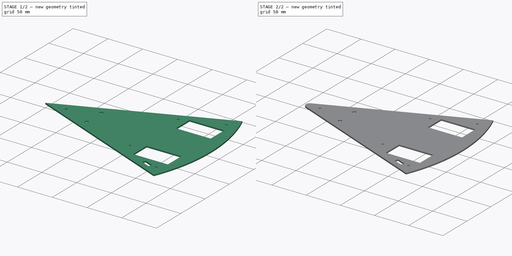
[diagram: build sequence overview — one tinted view per stage of 2, left to right]
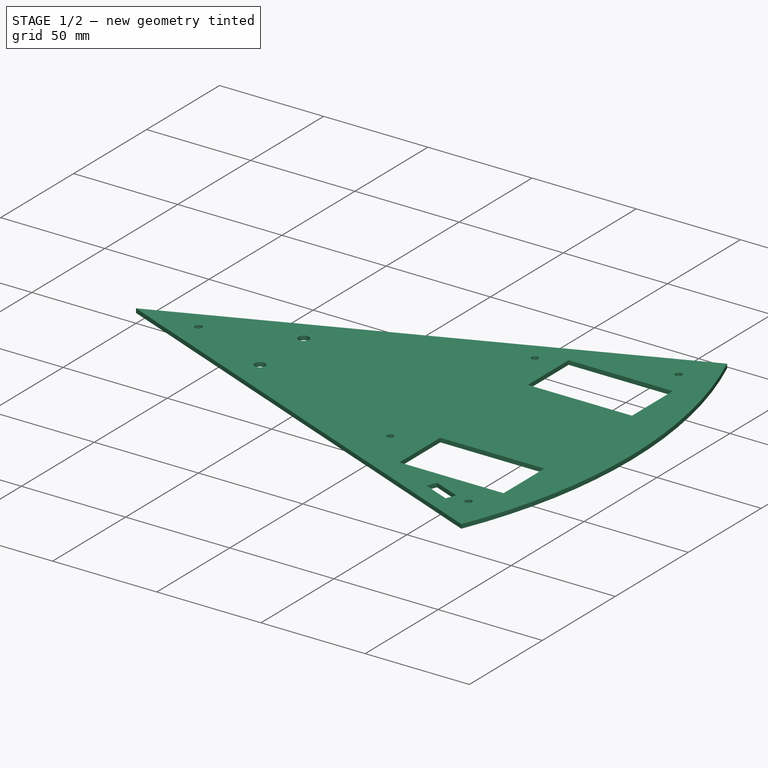
[diagram: stage 1 of 2 — iso view after this stage's code; geometry added in this stage tinted green]
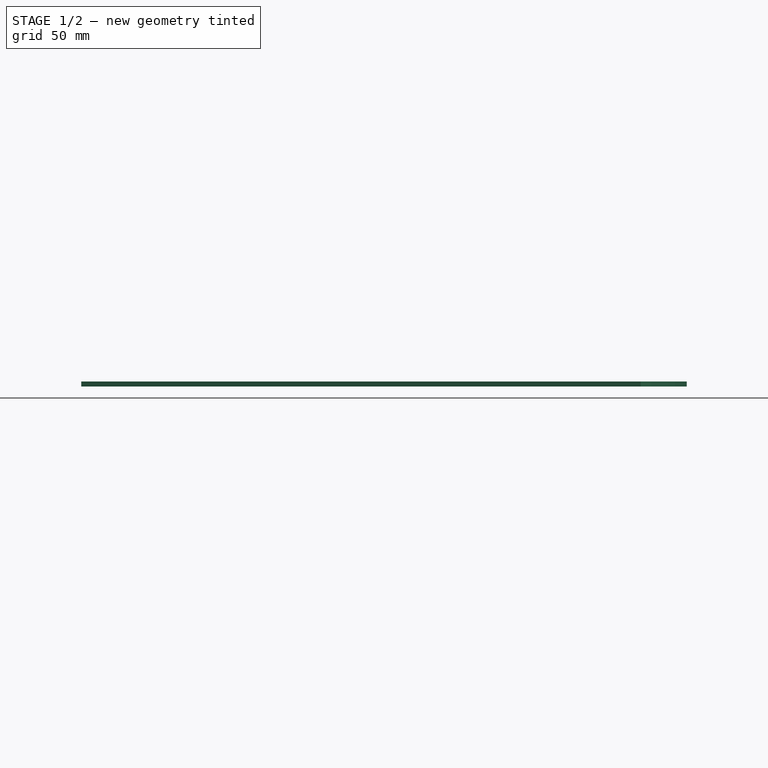
[diagram: stage 1 of 2 — front view after this stage's code; geometry added in this stage tinted green]
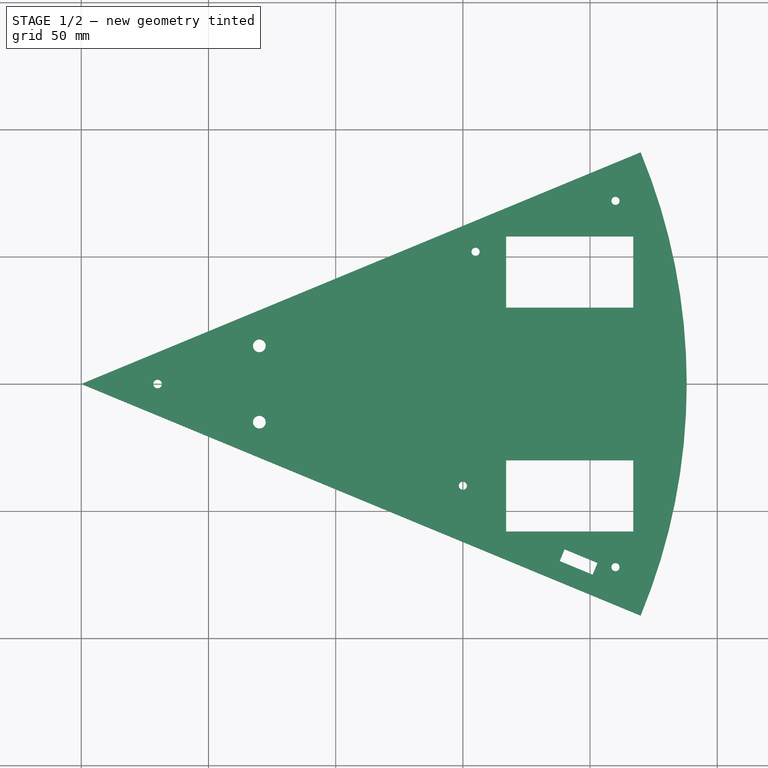
[diagram: stage 1 of 2 — top view after this stage's code; geometry added in this stage tinted green]
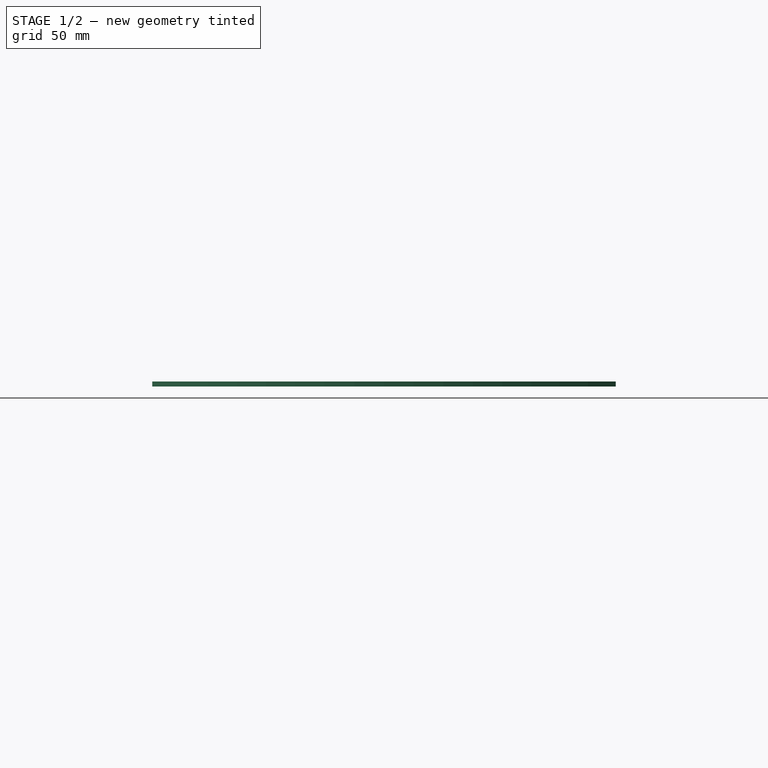
[diagram: stage 1 of 2 — right view after this stage's code; geometry added in this stage tinted green]
FCSTD DOCUMENT  (FreeCAD 0.21R33668 +26 (Git))
Label: tapa
License: All rights reserved
LicenseURL: https://en.wikipedia.org/wiki/All_rights_reserved
objects: Sketcher::SketchObject×1, PartDesign::Pad×1, PartDesign::Fillet×1, PartDesign::Body×1
note: 6 computed .brp shape members not serialized (recipe doc carries the construction recipe); baked Part::Feature solids carry a one-line shape summary decoded from their .brp

FEATURE [Sketcher::SketchObject] Sketch
  FullyConstrained = true
  MapMode = 5
  Support = -> [XY_Plane]
  sketch-geometry (22):
    g0: LineSegment StartX=0 StartY=0 StartZ=0 EndX=219.883 EndY=91.0787 EndZ=0
    g1: LineSegment StartX=0 StartY=0 StartZ=0 EndX=219.883 EndY=-91.0787 EndZ=0
    g2: ArcOfCircle CenterX=0 CenterY=0 CenterZ=0 NormalX=0 NormalY=0 NormalZ=1 AngleXU=0 Radius=238 StartAngle=5.89049 EndAngle=6.67588
    g3: LineSegment StartX=167 StartY=58 StartZ=0 EndX=217 EndY=58 EndZ=0
    g4: LineSegment StartX=217 StartY=58 StartZ=0 EndX=217 EndY=30 EndZ=0
    g5: LineSegment StartX=217 StartY=30 StartZ=0 EndX=167 EndY=30 EndZ=0
    g6: LineSegment StartX=167 StartY=30 StartZ=0 EndX=167 EndY=58 EndZ=0
    g7: LineSegment StartX=167 StartY=-30 StartZ=0 EndX=217 EndY=-30 EndZ=0
    g8: LineSegment StartX=217 StartY=-30 StartZ=0 EndX=217 EndY=-58 EndZ=0
    g9: LineSegment StartX=217 StartY=-58 StartZ=0 EndX=167 EndY=-58 EndZ=0
    g10: LineSegment StartX=167 StartY=-58 StartZ=0 EndX=167 EndY=-30 EndZ=0
    g11: Circle CenterX=155 CenterY=52 CenterZ=0 NormalX=0 NormalY=0 NormalZ=1 AngleXU=0 Radius=1.6
    g12: Circle CenterX=150 CenterY=-40 CenterZ=0 NormalX=0 NormalY=0 NormalZ=1 AngleXU=0 Radius=1.6
    g13: Circle CenterX=210 CenterY=72 CenterZ=0 NormalX=0 NormalY=0 NormalZ=1 AngleXU=0 Radius=1.6
    g14: Circle CenterX=210 CenterY=-72 CenterZ=0 NormalX=0 NormalY=0 NormalZ=1 AngleXU=0 Radius=1.6
    g15: Circle CenterX=30 CenterY=0 CenterZ=0 NormalX=0 NormalY=0 NormalZ=1 AngleXU=0 Radius=1.7
    g16: LineSegment StartX=190 StartY=-65 StartZ=0 EndX=202.934 EndY=-70.3576 EndZ=0
    g17: LineSegment StartX=202.934 StartY=-70.3576 StartZ=0 EndX=201.021 EndY=-74.977 EndZ=0
    g18: LineSegment StartX=201.021 StartY=-74.977 StartZ=0 EndX=188.087 EndY=-69.6194 EndZ=0
    g19: LineSegment StartX=188.087 StartY=-69.6194 StartZ=0 EndX=190 EndY=-65 EndZ=0
    g20: Circle CenterX=70 CenterY=15 CenterZ=0 NormalX=0 NormalY=0 NormalZ=1 AngleXU=0 Radius=2.5
    g21: Circle CenterX=70 CenterY=-15 CenterZ=0 NormalX=0 NormalY=0 NormalZ=1 AngleXU=0 Radius=2.5
  constraints (62):
    c: Coincident(g0,g-1)
    c: Coincident(g1,g0)
    c: Angle(g-1,g0) = 0.392699
    c: Angle(g1,g-1) = 0.392699
    c: Coincident(g2,g0)
    c: Coincident(g2,g0)
    c: Coincident(g2,g1)
    c: Radius(g2) = 238
    c: Coincident(g3,g4)
    c: Coincident(g4,g5)
    c: Coincident(g5,g6)
    c: Coincident(g6,g3)
    c: Horizontal(g3)
    c: Horizontal(g5)
    c: Vertical(g4)
    c: Vertical(g6)
    c: Coincident(g7,g8)
    c: Coincident(g8,g9)
    c: Coincident(g9,g10)
    c: Coincident(g10,g7)
    c: Horizontal(g7)
    c: Horizontal(g9)
    c: Vertical(g8)
    c: Vertical(g10)
    c: DistanceX(g0,g3) = 167
    c: DistanceX(g3,g3) = 50
    c: DistanceX(g9,g9) = 50
    c: DistanceY(g4,g4) = 28
    c: DistanceY(g8,g8) = 28
    c: DistanceY(g7,g4) = 60
    c: Symmetric(g5,g7,g-1)
    c: DistanceY(g0,g11) = 52
    c: DistanceX(g0,g11) = 155
    c: Diameter(g11) = 3.2
    c: Diameter(g12) = 3.2
    c: Diameter(g14) = 3.2
    c: DistanceX(g0,g13) = 210
    c: DistanceY(g0,g13) = 72
    c: Diameter(g13) = 3.2
    c: PointOnObject(g15,g-1)
    c: Diameter(g15) = 3.4
    c: DistanceX(g0,g15) = 30
    c: Symmetric(g13,g14,g-1)
    c: Coincident(g16,g17)
    c: Coincident(g17,g18)
    c: Coincident(g18,g19)
    c: Coincident(g19,g16)
    c: Angle(g-1,g18) = 2.74889
    c: Perpendicular(g17,g18)
    c: Perpendicular(g16,g17)
    c: Perpendicular(g18,g19)
    c: DistanceX(g0,g16) = 190
    c: DistanceY(g16,g0) = 65
    c: Distance(g16) = 14
    c: Distance(g17) = 5
    c: DistanceY(g12,g0) = 40
    c: DistanceX(g0,g12) = 150
    c: DistanceX(g0,g21) = 70
    c: DistanceY(g21,g0) = 15
    c: Diameter(g21) = 5
    c: Symmetric(g20,g21,g-1)
    c: Diameter(g20) = 5
FEATURE [PartDesign::Pad] Pad
  Direction = (0,0,1)
  Length = 2
  Length2 = 10
  Profile = -> Sketch
  ReferenceAxis = -> Sketch [N_Axis]
  Type = 0
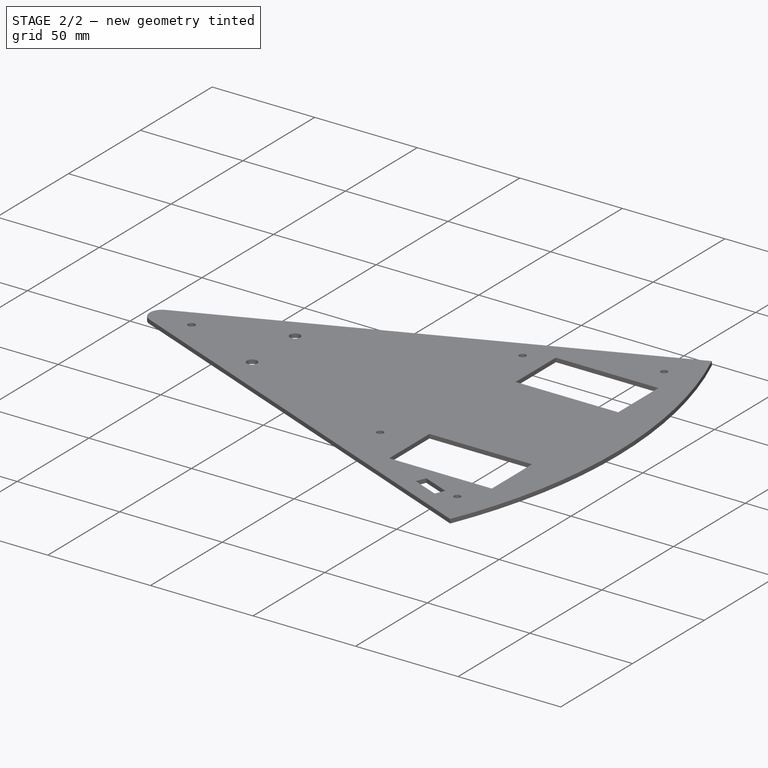
[diagram: stage 2 of 2 — iso view after this stage's code; geometry added in this stage tinted green]
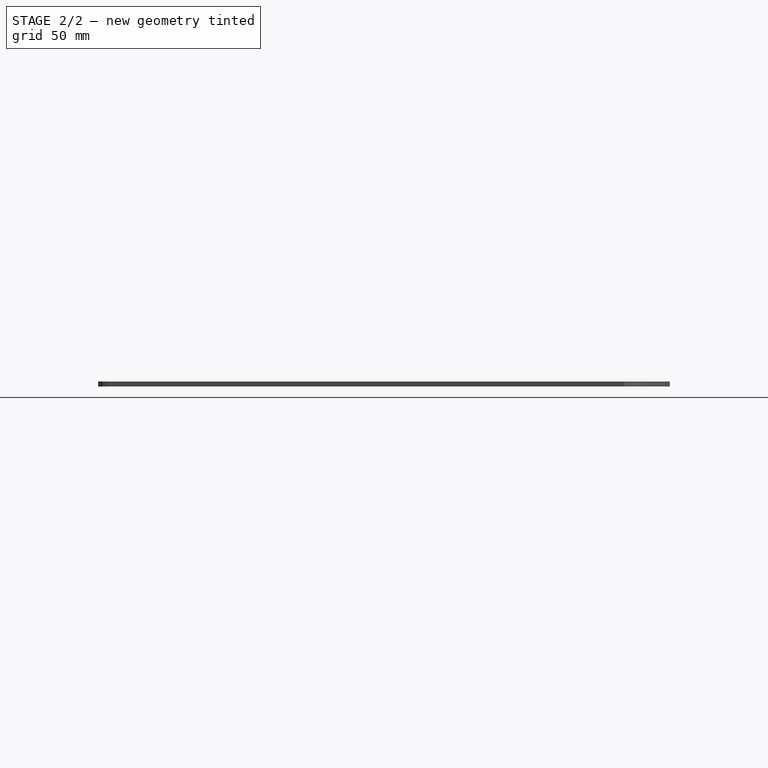
[diagram: stage 2 of 2 — front view after this stage's code; geometry added in this stage tinted green]
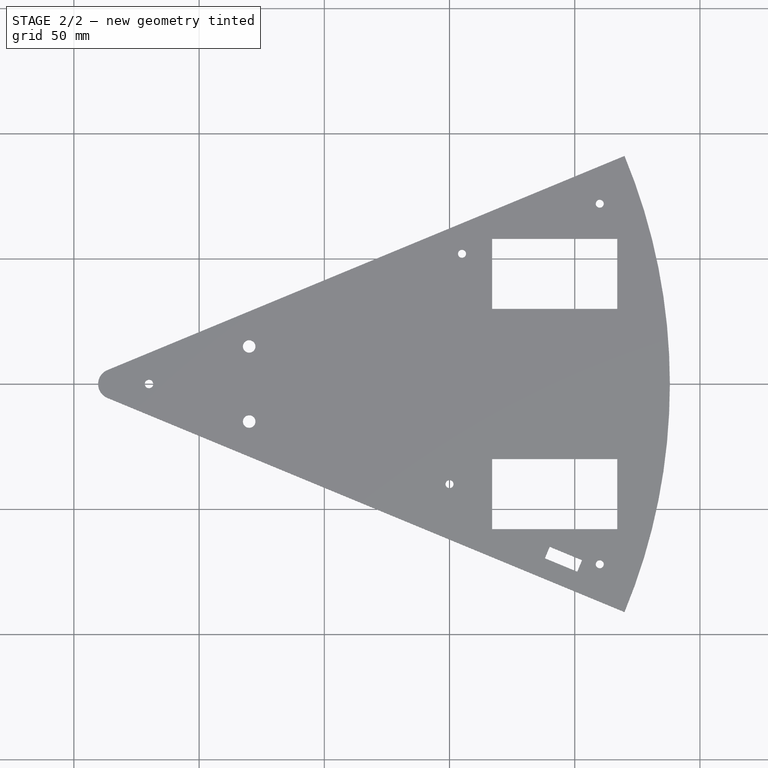
[diagram: stage 2 of 2 — top view after this stage's code; geometry added in this stage tinted green]
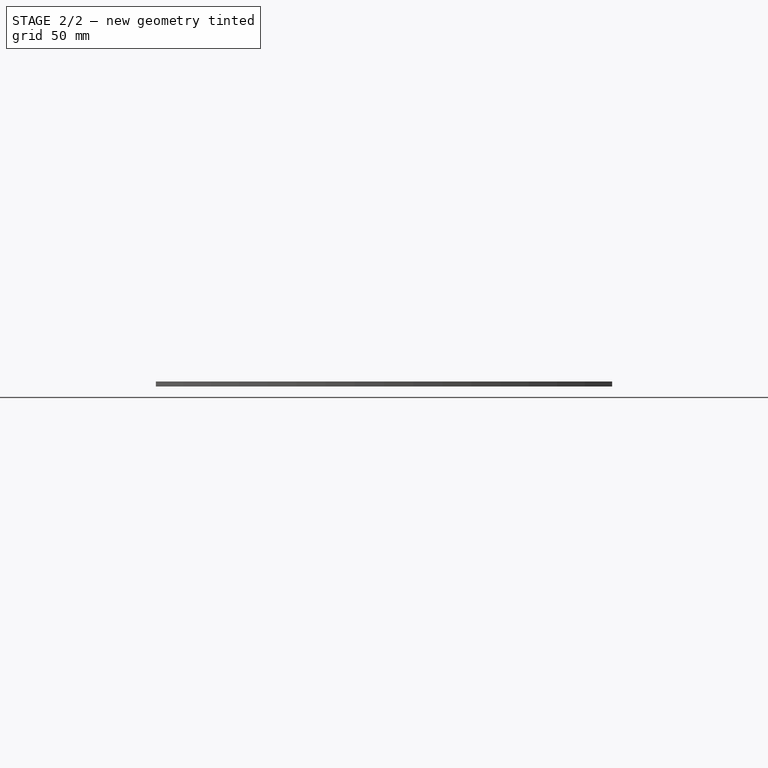
[diagram: stage 2 of 2 — right view after this stage's code; geometry added in this stage tinted green]
FEATURE [PartDesign::Fillet] Fillet
  Base = -> Pad [Edge1]
  BaseFeature = -> Pad
  Radius = 6
  SupportTransform = false
  UseAllEdges = false
FEATURE [PartDesign::Body] Body  label="Cuerpo"
  Group = -> [Sketch,Pad,Fillet]
  Origin = -> Origin
  Tip = -> Fillet
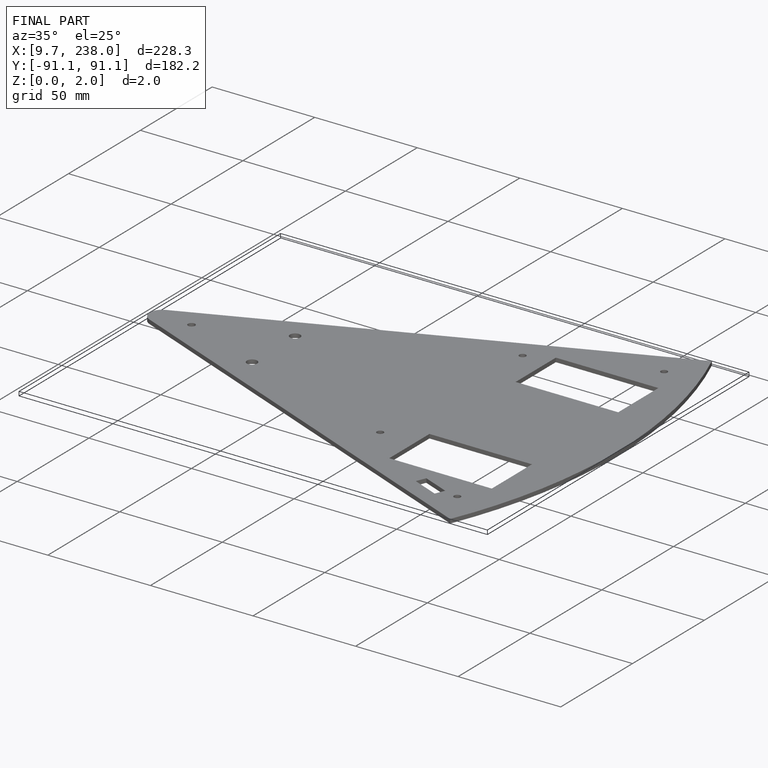
[diagram: finished part — iso view with bounding-box wireframe]
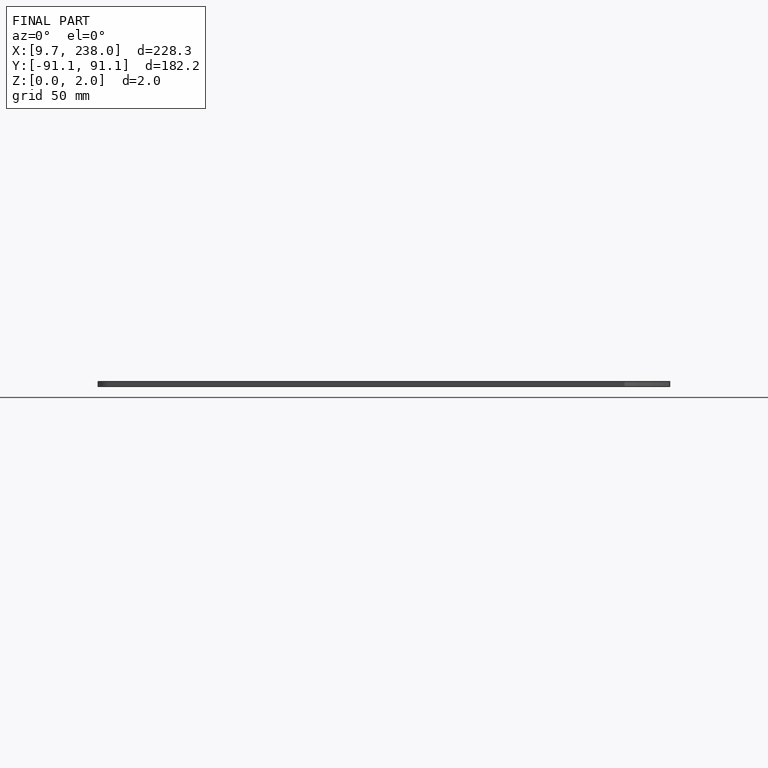
[diagram: finished part — front view with bounding-box wireframe]
